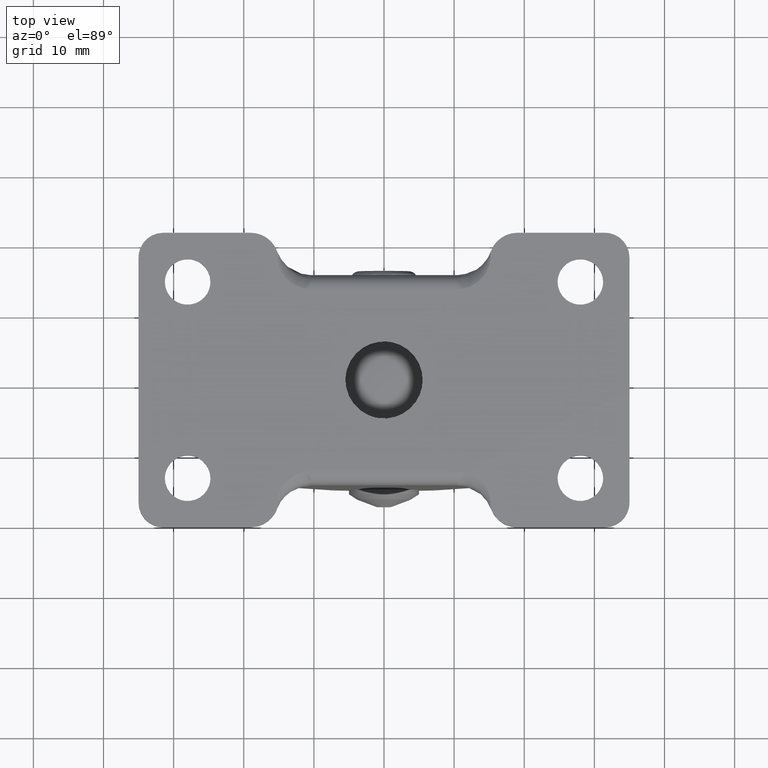
[diagram: clean part render]
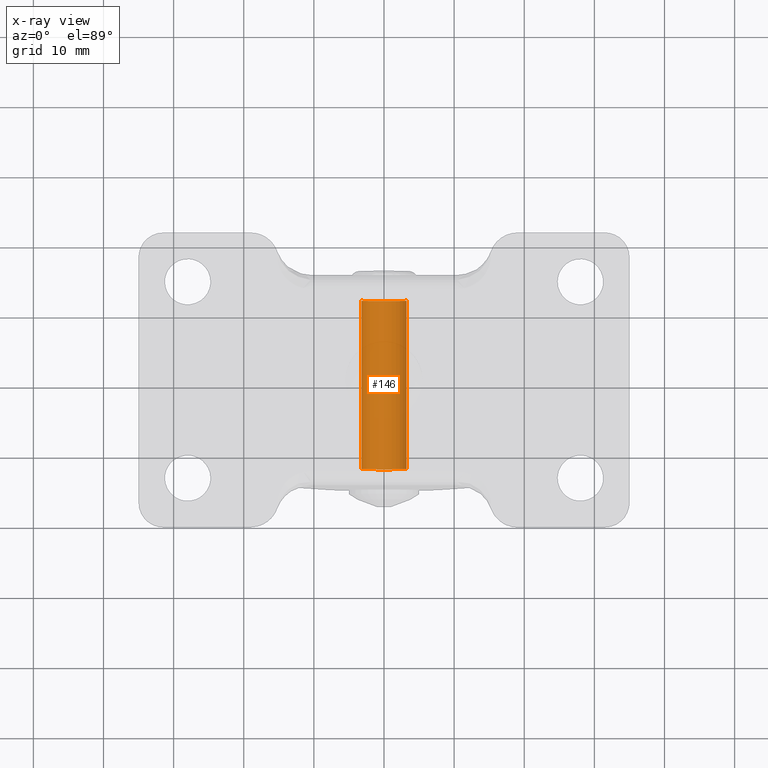
[diagram: x-ray — body ghosted, one internal face saturated and labeled with its STEP entity id]
A machine part, top view, then the same camera in x-ray: the body is ghosted and one INTERNAL B-rep face — a face not visible from any outside direction — is saturated and labeled: STEP entity #146.
In plain terms, the highlighted face is a freeform B-spline surface patch.
Its self-contained STEP definition (entity closure, byte-faithful):
#44=CARTESIAN_POINT('',(-17.772719039318094,-12.600000000000003,-38.116388737365540));
#45=CARTESIAN_POINT('',(-17.761740249792034,-12.600000000000001,-38.208752131926573));
#46=CARTESIAN_POINT('',(-17.756061905128931,-12.600000000000000,-38.301592246511717));
#47=CARTESIAN_POINT('',(-17.557654151640644,-12.600000000000005,-41.545530341382786));
#48=CARTESIAN_POINT('',(-20.801592246511710,-12.600000000000000,-41.743938094871069));
#49=CARTESIAN_POINT('',(-24.045530341382776,-12.600000000000005,-41.942345848359352));
#50=CARTESIAN_POINT('',(-24.243938094871069,-12.600000000000000,-38.698407753488283));
#51=CARTESIAN_POINT('',(-17.772719039318094,12.615000000000007,-38.116388737365540));
#52=CARTESIAN_POINT('',(-17.761740249792034,12.615000000000009,-38.208752131926573));
#53=CARTESIAN_POINT('',(-17.756061905128931,12.615000000000000,-38.301592246511717));
#54=CARTESIAN_POINT('',(-17.557654151640644,12.615000000000002,-41.545530341382786));
#55=CARTESIAN_POINT('',(-20.801592246511710,12.615000000000000,-41.743938094871069));
#56=CARTESIAN_POINT('',(-24.045530341382776,12.615000000000002,-41.942345848359352));
#57=CARTESIAN_POINT('',(-24.243938094871069,12.615000000000000,-38.698407753488283));
#65=(BOUNDED_SURFACE()B_SPLINE_SURFACE(2,1,((#44,#51),(#45,#52),(#46,#53),(#47,#54),(#48,#55),(#49,#56),(#50,#57)),.UNSPECIFIED.,.F.,.F.,.U.)B_SPLINE_SURFACE_WITH_KNOTS((3,2,2,3),(2,2),(0.0,0.215391052434010,5.600167363284248,10.984943674134490),(0.0,25.215000000000011),.UNSPECIFIED.)GEOMETRIC_REPRESENTATION_ITEM()RATIONAL_B_SPLINE_SURFACE(((0.977505800795127,0.977505800795127),(0.988284271247462,0.988284271247462),(1.0,1.0),(0.707106781186548,0.707106781186548),(1.0,1.0),(0.707106781186548,0.707106781186548),(1.0,1.0)))REPRESENTATION_ITEM('')SURFACE());
#66=CARTESIAN_POINT('',(-17.772719039362471,12.0,-38.116388736992157));
#67=VERTEX_POINT('',#66);
#68=CARTESIAN_POINT('',(-21.0,12.0,-41.750000000000000));
#69=VERTEX_POINT('',#68);
#70=CARTESIAN_POINT('',(-17.772719039362467,11.999999999999996,-38.116388736992164));
#71=CARTESIAN_POINT('',(-17.750000000000011,12.000000000000005,-38.307521610753959));
#72=CARTESIAN_POINT('',(-17.750000000000000,12.0,-38.500000000000000));
#73=CARTESIAN_POINT('',(-17.750000000000004,12.0,-41.750000000000007));
#74=CARTESIAN_POINT('',(-21.0,12.0,-41.750000000000000));
#82=(BOUNDED_CURVE()B_SPLINE_CURVE(2,(#70,#71,#72,#73,#74),.UNSPECIFIED.,.F.,.U.)B_SPLINE_CURVE_WITH_KNOTS((3,2,3),(0.229562473476538,0.250000000000000,0.500000000000000),.UNSPECIFIED.)CURVE()GEOMETRIC_REPRESENTATION_ITEM()RATIONAL_B_SPLINE_CURVE((0.956026754111237,0.976055948287832,1.0,0.707106781186547,1.0))REPRESENTATION_ITEM(''));
#83=EDGE_CURVE('',#67,#69,#82,.T.);
#84=ORIENTED_EDGE('',*,*,#83,.T.);
#85=CARTESIAN_POINT('',(-24.243938094862909,12.0,-38.698407753621737));
#86=VERTEX_POINT('',#85);
#87=CARTESIAN_POINT('',(-21.0,12.0,-41.750000000000000));
#88=CARTESIAN_POINT('',(-24.057294717191493,12.0,-41.750000000000000));
#89=CARTESIAN_POINT('',(-24.243938094862909,11.999999999999998,-38.698407753621737));
#97=(BOUNDED_CURVE()B_SPLINE_CURVE(2,(#87,#88,#89),.UNSPECIFIED.,.F.,.U.)B_SPLINE_CURVE_WITH_KNOTS((3,3),(0.500000000000000,0.739332962227772),.UNSPECIFIED.)CURVE()GEOMETRIC_REPRESENTATION_ITEM()RATIONAL_B_SPLINE_CURVE((1.0,0.719603993299798,0.976072041642776))REPRESENTATION_ITEM(''));
#98=EDGE_CURVE('',#69,#86,#97,.T.);
#99=ORIENTED_EDGE('',*,*,#98,.T.);
#100=CARTESIAN_POINT('',(-24.243938094862909,-12.0,-38.698407753621737));
#101=VERTEX_POINT('',#100);
#102=CARTESIAN_POINT('',(-24.243938094862909,-12.0,-38.698407753621737));
#103=CARTESIAN_POINT('',(-24.243938094862909,12.0,-38.698407753621737));
#104=QUASI_UNIFORM_CURVE('',1,(#102,#103),.UNSPECIFIED.,.F.,.U.);
#105=EDGE_CURVE('',#101,#86,#104,.T.);
#106=ORIENTED_EDGE('',*,*,#105,.F.);
#107=CARTESIAN_POINT('',(-21.0,-12.0,-41.750000000000000));
#108=VERTEX_POINT('',#107);
#109=CARTESIAN_POINT('',(-21.0,-12.0,-41.750000000000000));
#110=CARTESIAN_POINT('',(-24.057294717191493,-12.0,-41.750000000000000));
#111=CARTESIAN_POINT('',(-24.243938094862909,-11.999999999999998,-38.698407753621744));
#119=(BOUNDED_CURVE()B_SPLINE_CURVE(2,(#109,#110,#111),.UNSPECIFIED.,.F.,.U.)B_SPLINE_CURVE_WITH_KNOTS((3,3),(0.500000000000000,0.739332962227772),.UNSPECIFIED.)CURVE()GEOMETRIC_REPRESENTATION_ITEM()RATIONAL_B_SPLINE_CURVE((1.0,0.719603993299798,0.976072041642776))REPRESENTATION_ITEM(''));
#120=EDGE_CURVE('',#108,#101,#119,.T.);
#121=ORIENTED_EDGE('',*,*,#120,.F.);
#122=CARTESIAN_POINT('',(-17.772719039362471,-12.0,-38.116388736992150));
#123=VERTEX_POINT('',#122);
#124=CARTESIAN_POINT('',(-17.772719039362467,-11.999999999999995,-38.116388736992150));
#125=CARTESIAN_POINT('',(-17.750000000000007,-11.999999999999998,-38.307521610753959));
#126=CARTESIAN_POINT('',(-17.750000000000000,-12.0,-38.500000000000000));
#127=CARTESIAN_POINT('',(-17.750000000000004,-12.0,-41.750000000000007));
#128=CARTESIAN_POINT('',(-21.0,-12.0,-41.750000000000000));
#136=(BOUNDED_CURVE()B_SPLINE_CURVE(2,(#124,#125,#126,#127,#128),.UNSPECIFIED.,.F.,.U.)B_SPLINE_CURVE_WITH_KNOTS((3,2,3),(0.229562473476538,0.250000000000000,0.500000000000000),.UNSPECIFIED.)CURVE()GEOMETRIC_REPRESENTATION_ITEM()RATIONAL_B_SPLINE_CURVE((0.956026754111236,0.976055948287832,1.0,0.707106781186547,1.0))REPRESENTATION_ITEM(''));
#137=EDGE_CURVE('',#123,#108,#136,.T.);
#138=ORIENTED_EDGE('',*,*,#137,.F.);
#139=CARTESIAN_POINT('',(-17.772719039362471,-12.0,-38.116388736992150));
#140=CARTESIAN_POINT('',(-17.772719039362471,12.0,-38.116388736992157));
#141=QUASI_UNIFORM_CURVE('',1,(#139,#140),.UNSPECIFIED.,.F.,.U.);
#142=EDGE_CURVE('',#123,#67,#141,.T.);
#143=ORIENTED_EDGE('',*,*,#142,.T.);
#144=EDGE_LOOP('',(#84,#99,#106,#121,#138,#143));
#145=FACE_OUTER_BOUND('',#144,.T.);
#146=ADVANCED_FACE('',(#145),#65,.F.);